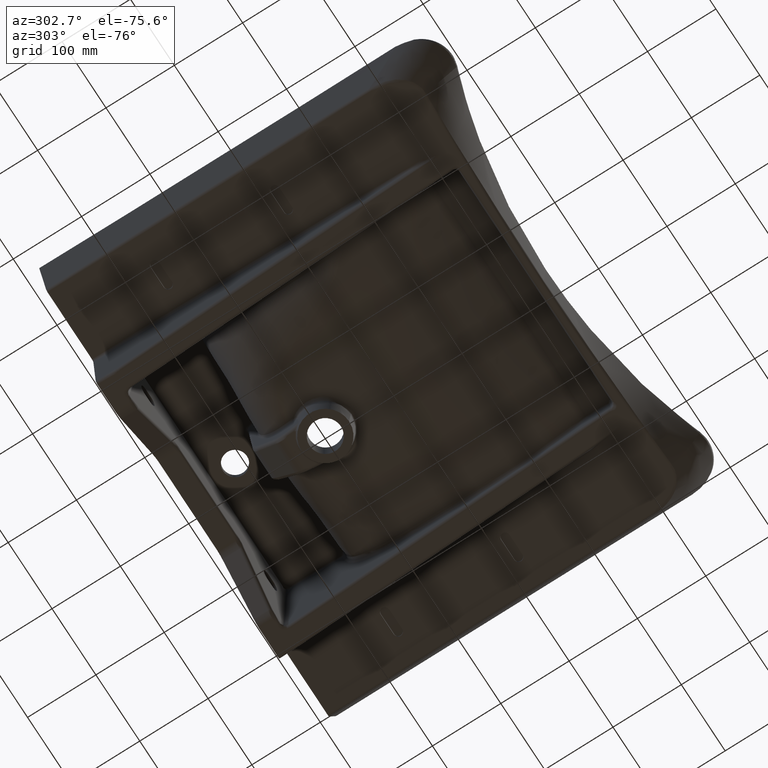
[diagram: clean part render]
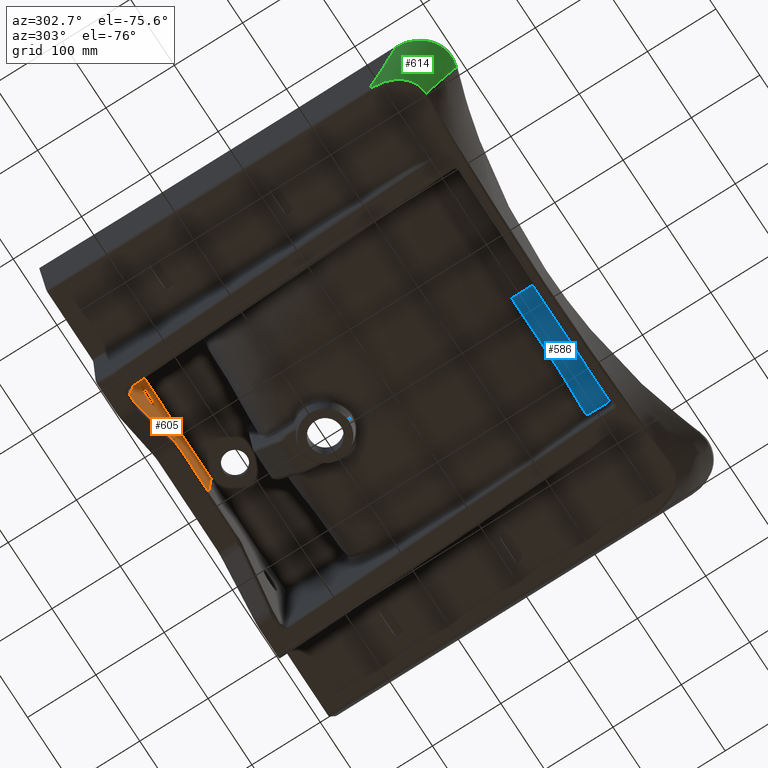
[diagram: same view with three faces highlighted in distinct colors, each labeled with its STEP entity id]
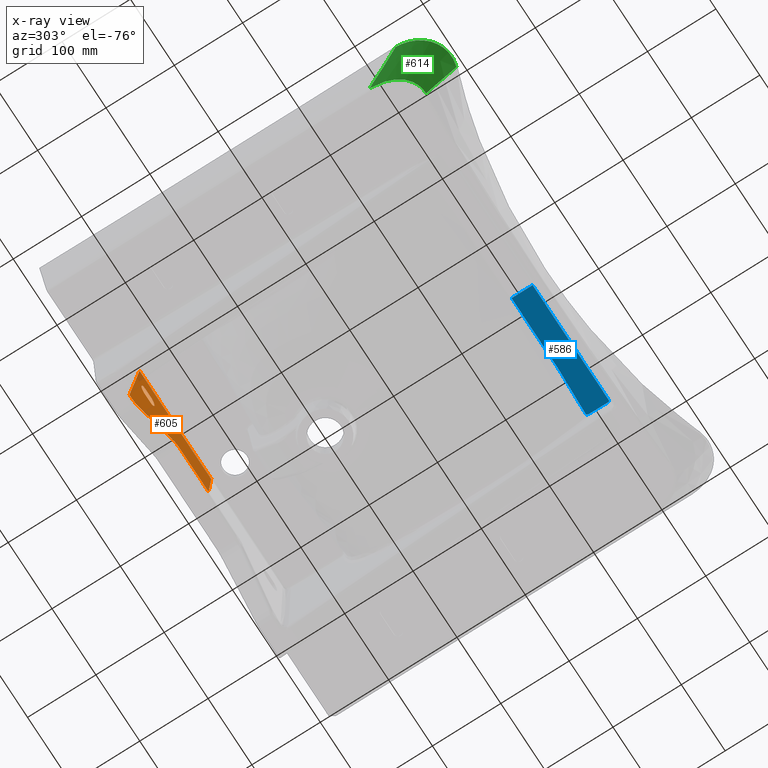
[diagram: x-ray of the same camera — body ghosted, the three highlighted faces saturated]
A machine part, auxiliary view with three faces highlighted in distinct colors.
The next image is the same camera in x-ray (body ghosted, the three faces saturated) — at least one of them is partly hidden behind the body in this view.
Their STEP definitions:

[orange] entity #605 — the highlighted planar face has unit normal (0, -0.9976, -0.0698).
#133=ELLIPSE('',#3303,20.0488379616234,20.);
#134=ELLIPSE('',#3304,30.0732569424351,30.);
#265=FACE_BOUND('',#1039,.T.);
#266=FACE_BOUND('',#1040,.T.);
#462=B_SPLINE_CURVE_WITH_KNOTS('',3,(#19246,#19247,#19248,#19249,#19250,
#19251,#19252,#19253,#19254,#19255,#19256,#19257,#19258,#19259,#19260,#19261,
#19262,#19263,#19264,#19265,#19266,#19267,#19268,#19269,#19270,#19271,#19272,
#19273,#19274,#19275,#19276,#19277),.UNSPECIFIED.,.T.,.F.,(2,2,2,2,2,2,
2,2,2,2,2,2,2,2,2,2,2,2),(-0.0624999999999999,0.,0.125,0.1875,0.25,0.3125,
0.375,0.4375,0.5,0.5625,0.625,0.6875,0.75,0.8125,0.875,0.9375,1.,1.125),
 .UNSPECIFIED.);
#463=B_SPLINE_CURVE_WITH_KNOTS('',3,(#19279,#19280,#19281,#19282,#19283,
#19284,#19285,#19286,#19287,#19288,#19289,#19290,#19291),.UNSPECIFIED.,
 .F.,.F.,(4,3,3,3,4),(0.,0.0367360970949163,0.183680485474582,0.771458038993243,
1.),.UNSPECIFIED.);
#464=B_SPLINE_CURVE_WITH_KNOTS('',3,(#19293,#19294,#19295,#19296,#19297,
#19298,#19299,#19300,#19301,#19302),.UNSPECIFIED.,.F.,.F.,(4,3,3,4),(0.,
0.0859933666987911,0.516120278577125,1.),.UNSPECIFIED.);
#605=ADVANCED_FACE('',(#265,#266),#777,.T.);
#777=PLANE('',#3305);
#1039=EDGE_LOOP('',(#1603));
#1040=EDGE_LOOP('',(#1604,#1605,#1606,#1607,#1608,#1609,#1610,#1611));
#1603=ORIENTED_EDGE('',*,*,#2801,.F.);
#1604=ORIENTED_EDGE('',*,*,#2697,.F.);
#1605=ORIENTED_EDGE('',*,*,#2802,.T.);
#1606=ORIENTED_EDGE('',*,*,#2803,.T.);
#1607=ORIENTED_EDGE('',*,*,#2804,.T.);
#1608=ORIENTED_EDGE('',*,*,#2805,.T.);
#1609=ORIENTED_EDGE('',*,*,#2806,.T.);
#1610=ORIENTED_EDGE('',*,*,#2807,.T.);
#1611=ORIENTED_EDGE('',*,*,#2808,.T.);
#2392=VERTEX_POINT('',#6954);
#2393=VERTEX_POINT('',#6956);
#2476=VERTEX_POINT('',#19278);
#2477=VERTEX_POINT('',#19292);
#2478=VERTEX_POINT('',#19303);
#2479=VERTEX_POINT('',#19305);
#2480=VERTEX_POINT('',#19307);
#2481=VERTEX_POINT('',#19309);
#2482=VERTEX_POINT('',#19311);
#2697=EDGE_CURVE('',#2392,#2393,#3094,.T.);
#2801=EDGE_CURVE('',#2476,#2476,#462,.T.);
#2802=EDGE_CURVE('',#2392,#2477,#463,.T.);
#2803=EDGE_CURVE('',#2477,#2478,#464,.T.);
#2804=EDGE_CURVE('',#2478,#2479,#3115,.T.);
#2805=EDGE_CURVE('',#2479,#2480,#133,.T.);
#2806=EDGE_CURVE('',#2480,#2481,#3116,.T.);
#2807=EDGE_CURVE('',#2481,#2482,#134,.T.);
#2808=EDGE_CURVE('',#2482,#2393,#3117,.T.);
#3094=LINE('',#6955,#3200);
#3115=LINE('',#19304,#3221);
#3116=LINE('',#19308,#3222);
#3117=LINE('',#19312,#3223);
#3200=VECTOR('',#3550,1.);
#3221=VECTOR('',#3608,1.);
#3222=VECTOR('',#3611,1.);
#3223=VECTOR('',#3614,1.);
#3303=AXIS2_PLACEMENT_3D('',#19306,#3609,#3610);
#3304=AXIS2_PLACEMENT_3D('',#19310,#3612,#3613);
#3305=AXIS2_PLACEMENT_3D('',#19313,#3615,#3616);
#3550=DIRECTION('',(0.,0.0697564737441141,-0.997564050259825));
#3608=DIRECTION('',(1.,8.81643855906849E-015,-1.4661242077996E-015));
#3609=DIRECTION('',(8.69269050304243E-015,-0.997564050259825,-0.0697564737441142));
#3610=DIRECTION('',(-3.79881995345229E-010,0.0697564737441141,-0.997564050259825));
#3611=DIRECTION('',(0.757127767926606,-0.0455695900399891,0.651675498617267));
#3612=DIRECTION('',(-8.69269050304243E-015,0.997564050259825,0.0697564737441142));
#3613=DIRECTION('',(-3.79881995345229E-010,0.0697564737441141,-0.997564050259825));
#3614=DIRECTION('',(1.,-1.73042275815515E-012,2.4870813168598E-011));
#3615=DIRECTION('',(8.69269050304428E-015,-0.997564050259825,-0.0697564737441142));
#3616=DIRECTION('',(0.,0.0697564737441141,-0.997564050259825));
#6954=CARTESIAN_POINT('',(0.,167.034767597231,105.012028412874));
#6955=CARTESIAN_POINT('',(0.,166.8396209017,107.802756176761));
#6956=CARTESIAN_POINT('',(0.,170.919770310038,49.4539012105851));
#19246=CARTESIAN_POINT('',(-124.701094170112,169.966411526181,63.0875670014195));
#19247=CARTESIAN_POINT('',(-124.701094172182,169.60658618262,68.2333091503926));
#19248=CARTESIAN_POINT('',(-126.543013234323,169.376225256803,71.5276238690853));
#19249=CARTESIAN_POINT('',(-130.931124492981,169.187752626481,74.222908053852));
#19250=CARTESIAN_POINT('',(-132.605821939681,169.15247588479,74.7273889633921));
#19251=CARTESIAN_POINT('',(-136.00040176924,169.143033795723,74.8624171279134));
#19252=CARTESIAN_POINT('',(-137.705584928069,169.147201625551,74.8028143845232));
#19253=CARTESIAN_POINT('',(-141.108549251599,169.147201625575,74.8028143841806));
#19254=CARTESIAN_POINT('',(-142.809827743506,169.147412959733,74.7997921649092));
#19255=CARTESIAN_POINT('',(-146.213246815275,169.146941098918,74.8065400889538));
#19256=CARTESIAN_POINT('',(-147.950464238786,169.174214236405,74.4165160519728));
#19257=CARTESIAN_POINT('',(-150.989367278237,169.289468624645,72.7683015111333));
#19258=CARTESIAN_POINT('',(-152.295987327461,169.375412801823,71.5392425166068));
#19259=CARTESIAN_POINT('',(-154.127706349407,169.583209150003,68.5676162919145));
#19260=CARTESIAN_POINT('',(-154.638725547119,169.70282808411,66.856985837263));
#19261=CARTESIAN_POINT('',(-154.752592943073,169.944150958001,63.4059079576402));
#19262=CARTESIAN_POINT('',(-154.350487940265,170.066781130406,61.6522147890707));
#19263=CARTESIAN_POINT('',(-152.719528780892,170.281580742726,58.5804372212096));
#19264=CARTESIAN_POINT('',(-151.501756733664,170.373249135983,57.2695181229588));
#19265=CARTESIAN_POINT('',(-148.572278417335,170.502491003919,55.4212733032079));
#19266=CARTESIAN_POINT('',(-146.85298058231,170.540212908034,54.8818249418936));
#19267=CARTESIAN_POINT('',(-143.364729202183,170.550103706372,54.7403799358484));
#19268=CARTESIAN_POINT('',(-141.619195416046,170.545737864452,54.8028143840841));
#19269=CARTESIAN_POINT('',(-138.129448296063,170.545737864377,54.8028143851455));
#19270=CARTESIAN_POINT('',(-136.384363411951,170.546815452131,54.7874041623124));
#19271=CARTESIAN_POINT('',(-132.895040305278,170.544653315681,54.8183241540964));
#19272=CARTESIAN_POINT('',(-131.158871306142,170.511596356114,55.2910607003192));
#19273=CARTESIAN_POINT('',(-128.155648853866,170.388950362213,57.0449801268287));
#19274=CARTESIAN_POINT('',(-126.894803705637,170.300015744735,58.3168044100513));
#19275=CARTESIAN_POINT('',(-125.167448879485,170.089833822898,61.3225459274277));
#19276=CARTESIAN_POINT('',(-124.701094170112,169.966411526181,63.0875670014195));
#19277=CARTESIAN_POINT('',(-124.701094172182,169.60658618262,68.2333091503926));
#19278=CARTESIAN_POINT('',(-124.701094170802,169.846469744994,64.8028143844106));
#19279=CARTESIAN_POINT('',(0.,167.034767597231,105.012028412874));
#19280=CARTESIAN_POINT('',(-2.,167.034767597231,105.012028412874));
#19281=CARTESIAN_POINT('',(-4.,167.034767597231,105.012028412874));
#19282=CARTESIAN_POINT('',(-6.,167.034767597231,105.012028412874));
#19283=CARTESIAN_POINT('',(-14.,167.034767597231,105.012028412874));
#19284=CARTESIAN_POINT('',(-22.,167.034767597231,105.012028412874));
#19285=CARTESIAN_POINT('',(-30.,167.03476759723,105.012028412874));
#19286=CARTESIAN_POINT('',(-62.,167.03476759723,105.012028412874));
#19287=CARTESIAN_POINT('',(-94.,167.03476759723,105.012028412874));
#19288=CARTESIAN_POINT('',(-126.,167.03476759723,105.012028412874));
#19289=CARTESIAN_POINT('',(-138.442364817159,167.03476759723,105.012028412874));
#19290=CARTESIAN_POINT('',(-150.884729634317,167.034767597229,105.012028412874));
#19291=CARTESIAN_POINT('',(-163.327094451476,167.034767597229,105.012028412874));
#19292=CARTESIAN_POINT('',(-163.327094451476,167.034767597229,105.012028412874));
#19293=CARTESIAN_POINT('',(-163.327094451476,167.034767597229,105.012028412874));
#19294=CARTESIAN_POINT('',(-163.583429309528,167.294480025121,101.297967658879));
#19295=CARTESIAN_POINT('',(-163.839764167581,167.554192453012,97.5839069048838));
#19296=CARTESIAN_POINT('',(-164.096099025633,167.813904880903,93.8698461508887));
#19297=CARTESIAN_POINT('',(-165.378250488396,169.112950480276,75.2926285820026));
#19298=CARTESIAN_POINT('',(-166.660401951159,170.411996079649,56.7154110131166));
#19299=CARTESIAN_POINT('',(-167.942553413922,171.711041679022,38.1381934442305));
#19300=CARTESIAN_POINT('',(-169.384934895969,173.172428552016,17.2393875016081));
#19301=CARTESIAN_POINT('',(-170.827316378017,174.633815425009,-3.65941844101423));
#19302=CARTESIAN_POINT('',(-172.269697860065,176.095202298003,-24.5582243836366));
#19303=CARTESIAN_POINT('',(-172.269697860065,176.095202298003,-24.5582243836366));
#19304=CARTESIAN_POINT('',(-167.373404093452,176.095202298003,-24.5582243836366));
#19305=CARTESIAN_POINT('',(-167.373404093575,176.095202298003,-24.5582243836366));
#19306=CARTESIAN_POINT('',(-167.373404093538,174.696666059133,-4.5582243836366));
#19307=CARTESIAN_POINT('',(-154.326340396248,175.756637814047,-19.7165266922105));
#19308=CARTESIAN_POINT('',(-71.0624665911315,170.745197532533,51.9504082391924));
#19309=CARTESIAN_POINT('',(-82.4007023544381,171.42761703608,42.1913546718832));
#19310=CARTESIAN_POINT('',(-62.8301068085027,173.017574668452,19.4539012090224));
#19311=CARTESIAN_POINT('',(-62.8301068091932,170.919770310147,49.4539012090224));
#19312=CARTESIAN_POINT('',(-1.99093162501638E-009,170.919770310038,49.453901210585));
#19313=CARTESIAN_POINT('',(0.,176.490373930523,-30.2094420144133));

[blue] entity #586 — the highlighted face is a freeform B-spline surface patch.
#292=B_SPLINE_SURFACE_WITH_KNOTS('',1,1,((#7113,#7114),(#7115,#7116)),
 .UNSPECIFIED.,.F.,.F.,.F.,(2,2),(2,2),(0.,1.),(0.,1.),.UNSPECIFIED.);
#394=B_SPLINE_CURVE_WITH_KNOTS('',3,(#7059,#7060,#7061,#7062,#7063,#7064,
#7065,#7066,#7067,#7068,#7069,#7070,#7071,#7072,#7073,#7074),
 .UNSPECIFIED.,.F.,.F.,(4,3,3,3,3,4),(0.,0.14869429997473,0.361179495344429,
0.573725866225964,0.786885671871085,1.),.UNSPECIFIED.);
#395=B_SPLINE_CURVE_WITH_KNOTS('',1,(#7077,#7078),.UNSPECIFIED.,.F.,.F.,
(2,2),(0.,1.),.UNSPECIFIED.);
#396=B_SPLINE_CURVE_WITH_KNOTS('',3,(#7082,#7083,#7084,#7085,#7086,#7087,
#7088,#7089,#7090,#7091,#7092,#7093,#7094,#7095),.UNSPECIFIED.,.F.,.F.,
(4,2,2,2,2,2,4),(0.,0.25,0.5,0.625,0.75,0.875,1.),.UNSPECIFIED.);
#397=B_SPLINE_CURVE_WITH_KNOTS('',3,(#7097,#7098,#7099,#7100,#7101,#7102,
#7103,#7104),.UNSPECIFIED.,.F.,.F.,(4,2,2,4),(0.,0.25,0.5,1.),
 .UNSPECIFIED.);
#398=B_SPLINE_CURVE_WITH_KNOTS('',3,(#7106,#7107,#7108,#7109,#7110,#7111,
#7112),.UNSPECIFIED.,.F.,.F.,(4,3,4),(0.,0.221089098609647,1.),
 .UNSPECIFIED.);
#586=ADVANCED_FACE('',(#817),#292,.T.);
#817=FACE_OUTER_BOUND('',#1018,.T.);
#1018=EDGE_LOOP('',(#1482,#1483,#1484,#1485,#1486,#1487));
#1482=ORIENTED_EDGE('',*,*,#2712,.T.);
#1483=ORIENTED_EDGE('',*,*,#2713,.T.);
#1484=ORIENTED_EDGE('',*,*,#2714,.T.);
#1485=ORIENTED_EDGE('',*,*,#2715,.T.);
#1486=ORIENTED_EDGE('',*,*,#2716,.T.);
#1487=ORIENTED_EDGE('',*,*,#2717,.T.);
#2407=VERTEX_POINT('',#7075);
#2408=VERTEX_POINT('',#7076);
#2409=VERTEX_POINT('',#7079);
#2410=VERTEX_POINT('',#7081);
#2411=VERTEX_POINT('',#7096);
#2412=VERTEX_POINT('',#7105);
#2712=EDGE_CURVE('',#2407,#2408,#394,.T.);
#2713=EDGE_CURVE('',#2408,#2409,#395,.T.);
#2714=EDGE_CURVE('',#2409,#2410,#3100,.T.);
#2715=EDGE_CURVE('',#2410,#2411,#396,.T.);
#2716=EDGE_CURVE('',#2411,#2412,#397,.T.);
#2717=EDGE_CURVE('',#2412,#2407,#398,.T.);
#3100=LINE('',#7080,#3206);
#3206=VECTOR('',#3564,1.);
#3564=DIRECTION('',(0.,1.,-2.19308724476044E-016));
#7059=CARTESIAN_POINT('',(175.664483323869,-301.351764045192,74.8184278694632));
#7060=CARTESIAN_POINT('',(175.666536766498,-301.508626539535,74.8184278694632));
#7061=CARTESIAN_POINT('',(175.649992053911,-301.666805281665,74.8184278694632));
#7062=CARTESIAN_POINT('',(175.615445420493,-301.819830079909,74.8184278694632));
#7063=CARTESIAN_POINT('',(175.566433302026,-302.036929947482,74.8184278694632));
#7064=CARTESIAN_POINT('',(175.479510787752,-302.248611101209,74.8184278694632));
#7065=CARTESIAN_POINT('',(175.361646903017,-302.437403698871,74.8184278694632));
#7066=CARTESIAN_POINT('',(175.243758477037,-302.626235606329,74.8184278694632));
#7067=CARTESIAN_POINT('',(175.091666029744,-302.79734112688,74.8184278694631));
#7068=CARTESIAN_POINT('',(174.917913360482,-302.936499957639,74.8184278694631));
#7069=CARTESIAN_POINT('',(174.743673129323,-303.076049277613,74.8184278694631));
#7070=CARTESIAN_POINT('',(174.542831397689,-303.187325060817,74.8184278694632));
#7071=CARTESIAN_POINT('',(174.332150464211,-303.261130312177,74.8184278694632));
#7072=CARTESIAN_POINT('',(174.121497434262,-303.334925788439,74.8184278694632));
#7073=CARTESIAN_POINT('',(173.895204563012,-303.373313340095,74.8184278694632));
#7074=CARTESIAN_POINT('',(173.671999564539,-303.373313340095,74.8184278694632));
#7075=CARTESIAN_POINT('',(175.664483323869,-301.351764045192,74.8184278694632));
#7076=CARTESIAN_POINT('',(173.671999564539,-303.373313340095,74.8184278694632));
#7077=CARTESIAN_POINT('',(173.671999564539,-303.373313340095,74.8184278694632));
#7078=CARTESIAN_POINT('',(-6.93889390390723E-015,-303.373313340095,74.8184278694632));
#7079=CARTESIAN_POINT('',(0.,-303.373313340095,74.8184278694632));
#7080=CARTESIAN_POINT('',(0.,-285.152845796458,74.8184278694632));
#7081=CARTESIAN_POINT('',(0.,-272.647083259067,74.8184278694632));
#7082=CARTESIAN_POINT('',(3.09121063880651E-018,-272.647083259067,74.8184278694632));
#7083=CARTESIAN_POINT('',(14.444995470895,-272.641649432014,74.8184278694632));
#7084=CARTESIAN_POINT('',(28.8899460983727,-272.682615296523,74.8184278694632));
#7085=CARTESIAN_POINT('',(57.779911300511,-272.698380579166,74.8184278694631));
#7086=CARTESIAN_POINT('',(72.2243606206912,-272.673714463002,74.8184278694632));
#7087=CARTESIAN_POINT('',(93.8910145247444,-272.642009005951,74.8184278694632));
#7088=CARTESIAN_POINT('',(101.112836718238,-272.613720159286,74.8184278694632));
#7089=CARTESIAN_POINT('',(115.552059831935,-272.359184907238,74.8184278694632));
#7090=CARTESIAN_POINT('',(122.769638216894,-272.140884287426,74.8184278694631));
#7091=CARTESIAN_POINT('',(137.202745836155,-271.612534622696,74.8184278694631));
#7092=CARTESIAN_POINT('',(144.419088458285,-271.33890410655,74.8184278694632));
#7093=CARTESIAN_POINT('',(158.854429276162,-270.910543408196,74.8184278694631));
#7094=CARTESIAN_POINT('',(166.074232449091,-270.791855177482,74.8184278694632));
#7095=CARTESIAN_POINT('',(173.275630672995,-269.849105971786,74.8184278694632));
#7096=CARTESIAN_POINT('',(173.275630672995,-269.849105971786,74.8184278694632));
#7097=CARTESIAN_POINT('',(173.275630672995,-269.849105971786,74.8184278694631));
#7098=CARTESIAN_POINT('',(173.718426813592,-269.791138658097,74.8184278694631));
#7099=CARTESIAN_POINT('',(174.113220619817,-270.118881523358,74.8184278694616));
#7100=CARTESIAN_POINT('',(174.61885761104,-270.821633753909,74.8184278694615));
#7101=CARTESIAN_POINT('',(174.79244127188,-271.232098410728,74.8184278694631));
#7102=CARTESIAN_POINT('',(175.191780925304,-272.483638500042,74.8184278694632));
#7103=CARTESIAN_POINT('',(175.297821331281,-273.342452298143,74.8184278694632));
#7104=CARTESIAN_POINT('',(175.309252887303,-274.215708929288,74.8184278694632));
#7105=CARTESIAN_POINT('',(175.309252887303,-274.215708929288,74.8184278694632));
#7106=CARTESIAN_POINT('',(175.309252887303,-274.215708929288,74.8184278694632));
#7107=CARTESIAN_POINT('',(175.335432079643,-276.21553758442,74.8184278694632));
#7108=CARTESIAN_POINT('',(175.361611271983,-278.215366239552,74.8184278694631));
#7109=CARTESIAN_POINT('',(175.387790464322,-280.215194894685,74.8184278694631));
#7110=CARTESIAN_POINT('',(175.480021417505,-287.260717944854,74.8184278694631));
#7111=CARTESIAN_POINT('',(175.572252370687,-294.306240995023,74.8184278694632));
#7112=CARTESIAN_POINT('',(175.664483323869,-301.351764045192,74.8184278694632));
#7113=CARTESIAN_POINT('',(261.937208611834,-316.792690132268,74.8184278694632));
#7114=CARTESIAN_POINT('',(261.937208611834,-253.513001460647,74.8184278694631));
#7115=CARTESIAN_POINT('',(-52.1942776516227,-316.792690132268,74.8184278694632));
#7116=CARTESIAN_POINT('',(-52.1942776516227,-253.513001460647,74.8184278694632));

[green] entity #614 — the highlighted face is a freeform B-spline surface patch.
#156=(
BOUNDED_SURFACE()
B_SPLINE_SURFACE(3,2,((#29262,#29263,#29264),(#29265,#29266,#29267),(#29268,
#29269,#29270),(#29271,#29272,#29273),(#29274,#29275,#29276),(#29277,#29278,
#29279),(#29280,#29281,#29282),(#29283,#29284,#29285),(#29286,#29287,#29288),
(#29289,#29290,#29291),(#29292,#29293,#29294),(#29295,#29296,#29297)),
 .UNSPECIFIED.,.F.,.F.,.F.)
B_SPLINE_SURFACE_WITH_KNOTS((4,2,2,2,2,4),(3,3),(0.,0.25,0.5,0.75,0.875,
1.),(0.,1.),.UNSPECIFIED.)
GEOMETRIC_REPRESENTATION_ITEM()
RATIONAL_B_SPLINE_SURFACE(((1.,0.617566763981083,1.),(1.,0.638577420925506,
1.),(1.,0.659732352014039,1.),(1.,0.700040894244226,1.),(1.,0.7191568741777,
1.),(1.,0.753833993369518,1.),(1.,0.769430265327307,1.),(1.,0.789901150419224,
1.),(1.,0.796223408629031,1.),(1.,0.807569898860248,1.),(1.,0.812682821277136,
1.),(1.,0.817415948061667,1.)))
REPRESENTATION_ITEM('')
SURFACE()
);
#439=B_SPLINE_CURVE_WITH_KNOTS('',3,(#17586,#17587,#17588,#17589,#17590,
#17591,#17592,#17593),.UNSPECIFIED.,.F.,.F.,(4,2,2,4),(0.,0.25,0.500000000000001,
1.),.UNSPECIFIED.);
#444=B_SPLINE_CURVE_WITH_KNOTS('',3,(#17656,#17657,#17658,#17659),
 .UNSPECIFIED.,.F.,.F.,(4,4),(0.,1.),.UNSPECIFIED.);
#501=B_SPLINE_CURVE_WITH_KNOTS('',3,(#29232,#29233,#29234,#29235,#29236,
#29237,#29238,#29239,#29240,#29241,#29242,#29243,#29244,#29245),
 .UNSPECIFIED.,.F.,.F.,(4,2,2,2,2,2,4),(0.,0.249999999999999,0.499999999999998,
0.624999999999999,0.749999999999999,0.875,1.),.UNSPECIFIED.);
#502=B_SPLINE_CURVE_WITH_KNOTS('',3,(#29246,#29247,#29248,#29249,#29250,
#29251,#29252,#29253,#29254,#29255,#29256,#29257,#29258,#29259,#29260,#29261),
 .UNSPECIFIED.,.F.,.F.,(4,2,2,2,2,2,2,4),(0.,0.125,0.25,0.375,0.5,0.625000000000001,
0.750000000000001,1.),.UNSPECIFIED.);
#614=ADVANCED_FACE('',(#842),#156,.T.);
#842=FACE_OUTER_BOUND('',#1049,.T.);
#1049=EDGE_LOOP('',(#1660,#1661,#1662,#1663));
#1660=ORIENTED_EDGE('',*,*,#2767,.F.);
#1661=ORIENTED_EDGE('',*,*,#2847,.T.);
#1662=ORIENTED_EDGE('',*,*,#2772,.F.);
#1663=ORIENTED_EDGE('',*,*,#2848,.T.);
#2454=VERTEX_POINT('',#17585);
#2455=VERTEX_POINT('',#17594);
#2456=VERTEX_POINT('',#17637);
#2458=VERTEX_POINT('',#17655);
#2767=EDGE_CURVE('',#2454,#2455,#439,.T.);
#2772=EDGE_CURVE('',#2458,#2456,#444,.T.);
#2847=EDGE_CURVE('',#2454,#2456,#501,.T.);
#2848=EDGE_CURVE('',#2458,#2455,#502,.T.);
#17585=CARTESIAN_POINT('',(-322.720875987465,-271.860848696172,58.0281025113521));
#17586=CARTESIAN_POINT('',(-322.720875987465,-271.860848696172,58.0281025113521));
#17587=CARTESIAN_POINT('',(-324.197493382059,-276.36551365315,61.888438898916));
#17588=CARTESIAN_POINT('',(-325.624007391904,-280.812145284537,65.8306827244134));
#17589=CARTESIAN_POINT('',(-328.406491792608,-289.445800713764,74.0266257717298));
#17590=CARTESIAN_POINT('',(-329.762613761796,-293.6350940113,78.2849934454483));
#17591=CARTESIAN_POINT('',(-333.65242095928,-305.690702470232,91.4612602490041));
#17592=CARTESIAN_POINT('',(-336.020861255967,-313.081856083194,100.806858056305));
#17593=CARTESIAN_POINT('',(-338.047702380139,-319.736242725977,110.813866185839));
#17594=CARTESIAN_POINT('',(-338.047702380139,-319.736242725978,110.813866185839));
#17637=CARTESIAN_POINT('',(-280.004836891704,-327.109888281022,56.10262496142));
#17655=CARTESIAN_POINT('',(-276.649401988532,-369.681012217455,108.621717394714));
#17656=CARTESIAN_POINT('',(-276.649401988532,-369.681012217455,108.621717394714));
#17657=CARTESIAN_POINT('',(-278.721501593145,-358.533742902277,88.7461557507963));
#17658=CARTESIAN_POINT('',(-280.230174647593,-344.136844366531,71.4301352055182));
#17659=CARTESIAN_POINT('',(-280.004836891704,-327.109888281022,56.1026249614201));
#29232=CARTESIAN_POINT('',(-322.720875987459,-271.860848696172,58.0281025113361));
#29233=CARTESIAN_POINT('',(-322.607434314616,-278.396311181591,57.731530754317));
#29234=CARTESIAN_POINT('',(-321.884580793476,-284.838722593274,57.4474619474476));
#29235=CARTESIAN_POINT('',(-318.754144795102,-297.466640031673,56.9216576049098));
#29236=CARTESIAN_POINT('',(-316.341332671837,-303.603928589484,56.6828931687493));
#29237=CARTESIAN_POINT('',(-310.997336075162,-311.862466228472,56.3897642964264));
#29238=CARTESIAN_POINT('',(-308.950503730177,-314.416314928042,56.3044903750875));
#29239=CARTESIAN_POINT('',(-304.305516995459,-318.972481441582,56.1646721231386));
#29240=CARTESIAN_POINT('',(-301.665070159859,-320.998766550658,56.1095921335541));
#29241=CARTESIAN_POINT('',(-296.005116868011,-324.214878394476,56.039345083963));
#29242=CARTESIAN_POINT('',(-292.910713626815,-325.445040905092,56.0233208753296));
#29243=CARTESIAN_POINT('',(-286.570771297256,-326.957141712526,56.0329326285228));
#29244=CARTESIAN_POINT('',(-283.298230672592,-327.25815008307,56.0580817011164));
#29245=CARTESIAN_POINT('',(-280.004836891704,-327.109888281022,56.10262496142));
#29246=CARTESIAN_POINT('',(-276.649401988532,-369.681012217455,108.621717394714));
#29247=CARTESIAN_POINT('',(-280.355656865175,-370.927276268027,108.497448750503));
#29248=CARTESIAN_POINT('',(-284.211984762965,-371.709728477538,108.401352266567));
#29249=CARTESIAN_POINT('',(-291.92067583703,-372.256366553864,108.268669685685));
#29250=CARTESIAN_POINT('',(-295.860101873388,-372.020739702132,108.230873216605));
#29251=CARTESIAN_POINT('',(-303.453147169261,-370.527479131207,108.215054522288));
#29252=CARTESIAN_POINT('',(-307.116182139161,-369.286158922015,108.235987448301));
#29253=CARTESIAN_POINT('',(-314.12072600219,-365.814894551346,108.33616954711));
#29254=CARTESIAN_POINT('',(-317.31076013278,-363.66288143148,108.413129970349));
#29255=CARTESIAN_POINT('',(-323.122365485788,-358.600908159069,108.619111962786));
#29256=CARTESIAN_POINT('',(-325.751807122062,-355.657008588364,108.750027993253));
#29257=CARTESIAN_POINT('',(-330.188415771669,-349.351883938581,109.053499705702));
#29258=CARTESIAN_POINT('',(-332.049093328206,-345.934901301364,109.228529899967));
#29259=CARTESIAN_POINT('',(-336.51111924485,-335.169425917852,109.81696037647));
#29260=CARTESIAN_POINT('',(-337.940050144003,-327.515580613302,110.282360887877));
#29261=CARTESIAN_POINT('',(-338.047702380139,-319.736242725978,110.813866185839));
#29262=CARTESIAN_POINT('',(-341.168324707752,-330.433716541396,128.72512687528));
#29263=CARTESIAN_POINT('',(-336.316039487707,-384.559619224305,95.53123931546));
#29264=CARTESIAN_POINT('',(-276.256517875305,-371.719732720974,112.353348657078));
#29265=CARTESIAN_POINT('',(-340.117210826438,-326.607021552079,121.534585831894));
#29266=CARTESIAN_POINT('',(-334.546198731558,-376.653577416009,88.3265520484993));
#29267=CARTESIAN_POINT('',(-277.122214054133,-367.385746127518,104.206510413273));
#29268=CARTESIAN_POINT('',(-338.883617985001,-322.446703709151,114.730069907245));
#29269=CARTESIAN_POINT('',(-332.62854212444,-368.520662110313,81.7245259999079));
#29270=CARTESIAN_POINT('',(-277.901666036287,-362.497202294705,96.4464848788435));
#29271=CARTESIAN_POINT('',(-336.151493135241,-313.561597377207,101.76670747912));
#29272=CARTESIAN_POINT('',(-328.739962053932,-352.619728836676,69.7355111019968));
#29273=CARTESIAN_POINT('',(-279.153271930217,-351.779235336511,81.7756960757865));
#29274=CARTESIAN_POINT('',(-334.652446375626,-308.835961397292,95.6083551864627));
#29275=CARTESIAN_POINT('',(-326.760430273611,-344.791862506888,64.2495574799755));
#29276=CARTESIAN_POINT('',(-279.620121276481,-345.951849543809,74.868723746504));
#29277=CARTESIAN_POINT('',(-331.461546634203,-298.886559660557,83.8510445338827));
#29278=CARTESIAN_POINT('',(-322.77628866953,-329.50627771223,54.0237244931469));
#29279=CARTESIAN_POINT('',(-280.088230575016,-333.604914917513,61.9214828064071));
#29280=CARTESIAN_POINT('',(-329.765844515774,-293.651895035839,78.2417423763803));
#29281=CARTESIAN_POINT('',(-320.750334316153,-321.949539180739,49.196923644951));
#29282=CARTESIAN_POINT('',(-280.087476164978,-327.075809195234,55.8685199459168));
#29283=CARTESIAN_POINT('',(-327.132781917505,-285.495402677805,70.2384708100505));
#29284=CARTESIAN_POINT('',(-317.676065309295,-310.734835437146,42.2941801763307));
#29285=CARTESIAN_POINT('',(-279.700414390498,-316.970171063157,47.4011466466682));
#29286=CARTESIAN_POINT('',(-326.243571855801,-282.730911529124,67.6489882919391));
#29287=CARTESIAN_POINT('',(-316.657910643479,-307.052492781283,40.0741964802417));
#29288=CARTESIAN_POINT('',(-279.50741905024,-313.549345908137,44.6867873427748));
#29289=CARTESIAN_POINT('',(-324.438936484253,-277.134535233746,62.5892712066095));
#29290=CARTESIAN_POINT('',(-314.642033944863,-299.952134510432,35.8106918517431));
#29291=CARTESIAN_POINT('',(-278.985994592992,-306.876088404404,39.5935675528645));
#29292=CARTESIAN_POINT('',(-323.522859832302,-274.303998828549,60.1171594560887));
#29293=CARTESIAN_POINT('',(-313.637352849893,-296.493642182464,33.747064987098));
#29294=CARTESIAN_POINT('',(-278.663350894422,-303.595415013849,37.1873883296137));
#29295=CARTESIAN_POINT('',(-322.587976582774,-271.455678408155,57.6812429426561));
#29296=CARTESIAN_POINT('',(-312.624587358855,-293.097201771575,31.7207988538294));
#29297=CARTESIAN_POINT('',(-278.293660814224,-300.376061188553,34.8791217918575));